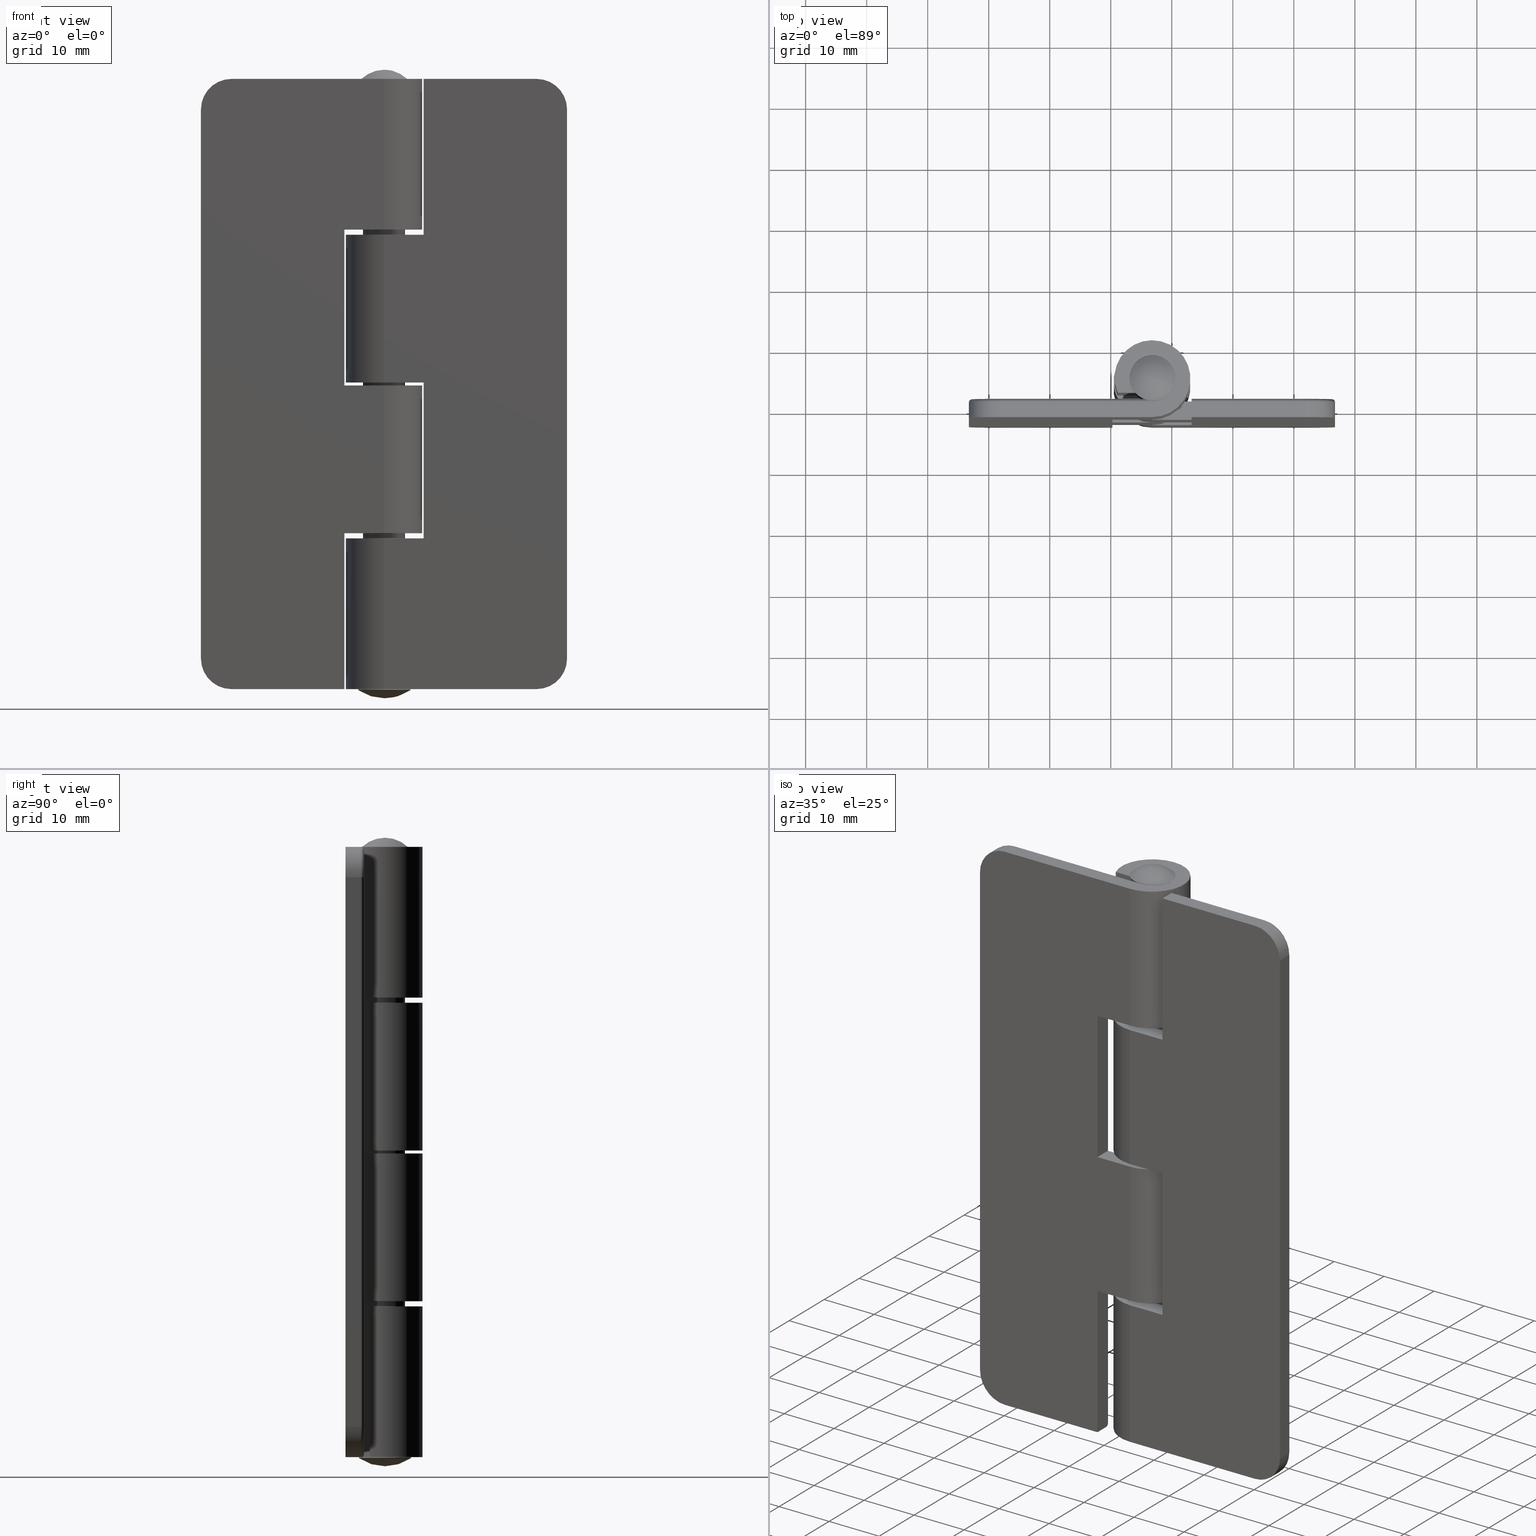
[diagram: canonical four-view strip — front | top / right | iso, engineering-drawing reading convention]
A machine part, canonical four-view strip (front | top / right | iso — engineering-drawing reading convention). The complete STEP part file that produces these views, byte-faithful:
ISO-10303-21;
HEADER;
/* Generated by software containing ST-Developer
 * from STEP Tools, Inc. (www.steptools.com) 
 */

FILE_DESCRIPTION(
/* description */ (''),
/* implementation_level */ '2;1');

FILE_NAME(
/* name */ '\\\\SYNOLOGYNAS\\web\\db2\\HHN10060-30\\\X2\B3C4BA74\X0\\\
HHN10060-30.stp',
/* time_stamp */ '2026-02-11T14:35:28+09:00',
/* author */ ('user'),
/* organization */ (''),
/* preprocessor_version */ 'ST-DEVELOPER v15.6',
/* originating_system */ 'Autodesk Inventor 2015',
/* authorisation */ '');

FILE_SCHEMA (('AUTOMOTIVE_DESIGN { 1 0 10303 214 3 1 1 }'));
ENDSEC;

DATA;
#10=MECHANICAL_DESIGN_GEOMETRIC_PRESENTATION_REPRESENTATION('',(#33,#34),
#965);
#11=ITEM_DEFINED_TRANSFORMATION($,$,#546,#611);
#12=ITEM_DEFINED_TRANSFORMATION($,$,#598,#612);
#13=ITEM_DEFINED_TRANSFORMATION($,$,#546,#613);
#14=(
REPRESENTATION_RELATIONSHIP($,$,#981,#983)
REPRESENTATION_RELATIONSHIP_WITH_TRANSFORMATION(#11)
SHAPE_REPRESENTATION_RELATIONSHIP()
);
#15=(
REPRESENTATION_RELATIONSHIP($,$,#982,#983)
REPRESENTATION_RELATIONSHIP_WITH_TRANSFORMATION(#12)
SHAPE_REPRESENTATION_RELATIONSHIP()
);
#16=(
REPRESENTATION_RELATIONSHIP($,$,#981,#983)
REPRESENTATION_RELATIONSHIP_WITH_TRANSFORMATION(#13)
SHAPE_REPRESENTATION_RELATIONSHIP()
);
#17=CONTEXT_DEPENDENT_SHAPE_REPRESENTATION(#14,#978);
#18=CONTEXT_DEPENDENT_SHAPE_REPRESENTATION(#15,#979);
#19=CONTEXT_DEPENDENT_SHAPE_REPRESENTATION(#16,#980);
#20=NEXT_ASSEMBLY_USAGE_OCCURRENCE('HHN10060-30_\X2\B0A0AC1C\X0\:1',$,$,
#987,#985,$);
#21=NEXT_ASSEMBLY_USAGE_OCCURRENCE('HHN10060-30_\X2\D540\X0\:1',$,$,#987,
#986,$);
#22=NEXT_ASSEMBLY_USAGE_OCCURRENCE('HHN10060-30_\X2\B0A0AC1C\X0\:2',$,$,
#987,#985,$);
#23=SPHERICAL_SURFACE('',#604,7.49999999999996);
#24=SPHERICAL_SURFACE('',#608,5.43750000000002);
#25=FACE_BOUND('',#204,.T.);
#26=FACE_BOUND('',#206,.T.);
#27=FACE_BOUND('',#209,.T.);
#28=FACE_BOUND('',#212,.T.);
#29=SHAPE_REPRESENTATION_RELATIONSHIP('SRR','None',#981,#31);
#30=SHAPE_REPRESENTATION_RELATIONSHIP('SRR','None',#982,#32);
#31=ADVANCED_BREP_SHAPE_REPRESENTATION($,(#35),#962);
#32=ADVANCED_BREP_SHAPE_REPRESENTATION($,(#36),#963);
#33=STYLED_ITEM('',(#1000),#35);
#34=STYLED_ITEM('',(#1001),#36);
#35=MANIFOLD_SOLID_BREP('\X2\C194B9ACB4DC\X0\1',#544);
#36=MANIFOLD_SOLID_BREP('\X2\C194B9ACB4DC\X0\1',#545);
#37=PLANE('',#565);
#38=PLANE('',#570);
#39=PLANE('',#573);
#40=PLANE('',#574);
#41=PLANE('',#575);
#42=PLANE('',#579);
#43=PLANE('',#583);
#44=PLANE('',#584);
#45=PLANE('',#588);
#46=PLANE('',#590);
#47=PLANE('',#594);
#48=PLANE('',#596);
#49=PLANE('',#602);
#50=PLANE('',#605);
#51=LINE('',#814,#92);
#52=LINE('',#815,#93);
#53=LINE('',#826,#94);
#54=LINE('',#827,#95);
#55=LINE('',#838,#96);
#56=LINE('',#839,#97);
#57=LINE('',#842,#98);
#58=LINE('',#844,#99);
#59=LINE('',#849,#100);
#60=LINE('',#852,#101);
#61=LINE('',#856,#102);
#62=LINE('',#857,#103);
#63=LINE('',#860,#104);
#64=LINE('',#864,#105);
#65=LINE('',#865,#106);
#66=LINE('',#868,#107);
#67=LINE('',#870,#108);
#68=LINE('',#871,#109);
#69=LINE('',#874,#110);
#70=LINE('',#878,#111);
#71=LINE('',#883,#112);
#72=LINE('',#887,#113);
#73=LINE('',#889,#114);
#74=LINE('',#891,#115);
#75=LINE('',#897,#116);
#76=LINE('',#901,#117);
#77=LINE('',#903,#118);
#78=LINE('',#904,#119);
#79=LINE('',#907,#120);
#80=LINE('',#911,#121);
#81=LINE('',#916,#122);
#82=LINE('',#918,#123);
#83=LINE('',#919,#124);
#84=LINE('',#921,#125);
#85=LINE('',#922,#126);
#86=LINE('',#924,#127);
#87=LINE('',#926,#128);
#88=LINE('',#928,#129);
#89=LINE('',#931,#130);
#90=LINE('',#933,#131);
#91=LINE('',#935,#132);
#92=VECTOR('',#628,25.);
#93=VECTOR('',#629,25.);
#94=VECTOR('',#642,90.);
#95=VECTOR('',#643,90.);
#96=VECTOR('',#656,18.5);
#97=VECTOR('',#657,18.5);
#98=VECTOR('',#660,2.5);
#99=VECTOR('',#661,25.);
#100=VECTOR('',#666,2.54253523350225);
#101=VECTOR('',#669,2.5);
#102=VECTOR('',#674,2.5);
#103=VECTOR('',#675,90.);
#104=VECTOR('',#678,2.5);
#105=VECTOR('',#683,2.5);
#106=VECTOR('',#684,18.5);
#107=VECTOR('',#687,25.05);
#108=VECTOR('',#688,3.);
#109=VECTOR('',#689,25.55);
#110=VECTOR('',#692,6.50000000000001);
#111=VECTOR('',#695,3.21193035016996);
#112=VECTOR('',#700,6.50000000000001);
#113=VECTOR('',#703,6.5);
#114=VECTOR('',#704,3.);
#115=VECTOR('',#705,6.5);
#116=VECTOR('',#710,3.21193035016996);
#117=VECTOR('',#715,25.55);
#118=VECTOR('',#716,3.);
#119=VECTOR('',#717,25.55);
#120=VECTOR('',#720,6.49999999999999);
#121=VECTOR('',#723,3.21193035016996);
#122=VECTOR('',#728,6.49999999999999);
#123=VECTOR('',#731,24.2);
#124=VECTOR('',#732,24.7);
#125=VECTOR('',#735,24.2);
#126=VECTOR('',#736,24.2);
#127=VECTOR('',#739,24.7);
#128=VECTOR('',#742,24.7);
#129=VECTOR('',#745,24.2);
#130=VECTOR('',#750,24.2);
#131=VECTOR('',#753,24.2);
#132=VECTOR('',#756,24.2);
#133=CYLINDRICAL_SURFACE('',#551,0.5);
#134=CYLINDRICAL_SURFACE('',#557,0.5);
#135=CYLINDRICAL_SURFACE('',#563,0.5);
#136=CYLINDRICAL_SURFACE('',#568,5.);
#137=CYLINDRICAL_SURFACE('',#571,5.);
#138=CYLINDRICAL_SURFACE('',#589,3.45);
#139=CYLINDRICAL_SURFACE('',#591,6.3);
#140=CYLINDRICAL_SURFACE('',#592,6.3);
#141=CYLINDRICAL_SURFACE('',#593,6.15);
#142=CYLINDRICAL_SURFACE('',#595,6.15);
#143=CYLINDRICAL_SURFACE('',#597,3.45);
#144=CYLINDRICAL_SURFACE('',#609,3.45);
#145=FACE_OUTER_BOUND('',#177,.T.);
#146=FACE_OUTER_BOUND('',#178,.T.);
#147=FACE_OUTER_BOUND('',#179,.T.);
#148=FACE_OUTER_BOUND('',#180,.T.);
#149=FACE_OUTER_BOUND('',#181,.T.);
#150=FACE_OUTER_BOUND('',#182,.T.);
#151=FACE_OUTER_BOUND('',#183,.T.);
#152=FACE_OUTER_BOUND('',#184,.T.);
#153=FACE_OUTER_BOUND('',#185,.T.);
#154=FACE_OUTER_BOUND('',#186,.T.);
#155=FACE_OUTER_BOUND('',#187,.T.);
#156=FACE_OUTER_BOUND('',#188,.T.);
#157=FACE_OUTER_BOUND('',#189,.T.);
#158=FACE_OUTER_BOUND('',#190,.T.);
#159=FACE_OUTER_BOUND('',#191,.T.);
#160=FACE_OUTER_BOUND('',#192,.T.);
#161=FACE_OUTER_BOUND('',#193,.T.);
#162=FACE_OUTER_BOUND('',#194,.T.);
#163=FACE_OUTER_BOUND('',#195,.T.);
#164=FACE_OUTER_BOUND('',#196,.T.);
#165=FACE_OUTER_BOUND('',#197,.T.);
#166=FACE_OUTER_BOUND('',#198,.T.);
#167=FACE_OUTER_BOUND('',#199,.T.);
#168=FACE_OUTER_BOUND('',#200,.T.);
#169=FACE_OUTER_BOUND('',#201,.T.);
#170=FACE_OUTER_BOUND('',#202,.T.);
#171=FACE_OUTER_BOUND('',#203,.T.);
#172=FACE_OUTER_BOUND('',#205,.T.);
#173=FACE_OUTER_BOUND('',#207,.T.);
#174=FACE_OUTER_BOUND('',#208,.T.);
#175=FACE_OUTER_BOUND('',#210,.T.);
#176=FACE_OUTER_BOUND('',#211,.T.);
#177=EDGE_LOOP('',(#364,#365,#366,#367));
#178=EDGE_LOOP('',(#368,#369,#370,#371));
#179=EDGE_LOOP('',(#372,#373,#374,#375));
#180=EDGE_LOOP('',(#376,#377,#378,#379));
#181=EDGE_LOOP('',(#380,#381,#382,#383));
#182=EDGE_LOOP('',(#384,#385,#386,#387));
#183=EDGE_LOOP('',(#388,#389,#390,#391,#392,#393,#394));
#184=EDGE_LOOP('',(#395,#396,#397,#398));
#185=EDGE_LOOP('',(#399,#400,#401,#402));
#186=EDGE_LOOP('',(#403,#404,#405,#406));
#187=EDGE_LOOP('',(#407,#408,#409,#410));
#188=EDGE_LOOP('',(#411,#412,#413,#414,#415));
#189=EDGE_LOOP('',(#416,#417,#418,#419,#420,#421,#422));
#190=EDGE_LOOP('',(#423,#424,#425,#426,#427,#428,#429));
#191=EDGE_LOOP('',(#430,#431,#432,#433));
#192=EDGE_LOOP('',(#434,#435,#436,#437,#438,#439,#440));
#193=EDGE_LOOP('',(#441,#442,#443,#444,#445,#446,#447,#448,#449,#450,#451,
#452));
#194=EDGE_LOOP('',(#453,#454,#455,#456));
#195=EDGE_LOOP('',(#457,#458,#459,#460,#461));
#196=EDGE_LOOP('',(#462,#463,#464,#465));
#197=EDGE_LOOP('',(#466,#467,#468,#469));
#198=EDGE_LOOP('',(#470,#471,#472,#473));
#199=EDGE_LOOP('',(#474,#475,#476,#477,#478,#479,#480,#481,#482,#483,#484,
#485));
#200=EDGE_LOOP('',(#486,#487,#488,#489));
#201=EDGE_LOOP('',(#490,#491,#492,#493));
#202=EDGE_LOOP('',(#494,#495,#496,#497));
#203=EDGE_LOOP('',(#498));
#204=EDGE_LOOP('',(#499));
#205=EDGE_LOOP('',(#500));
#206=EDGE_LOOP('',(#501));
#207=EDGE_LOOP('',(#502));
#208=EDGE_LOOP('',(#503));
#209=EDGE_LOOP('',(#504));
#210=EDGE_LOOP('',(#505));
#211=EDGE_LOOP('',(#506));
#212=EDGE_LOOP('',(#507));
#213=CIRCLE('',#548,3.45);
#214=CIRCLE('',#549,0.499999999999998);
#215=CIRCLE('',#550,3.95);
#216=CIRCLE('',#552,0.5);
#217=CIRCLE('',#554,0.5);
#218=CIRCLE('',#555,5.);
#219=CIRCLE('',#556,4.5);
#220=CIRCLE('',#558,0.5);
#221=CIRCLE('',#560,0.5);
#222=CIRCLE('',#561,5.);
#223=CIRCLE('',#562,4.5);
#224=CIRCLE('',#564,0.5);
#225=CIRCLE('',#566,6.3);
#226=CIRCLE('',#567,6.15);
#227=CIRCLE('',#569,5.);
#228=CIRCLE('',#572,5.);
#229=CIRCLE('',#576,3.45);
#230=CIRCLE('',#577,6.15);
#231=CIRCLE('',#578,6.3);
#232=CIRCLE('',#580,6.3);
#233=CIRCLE('',#581,6.15);
#234=CIRCLE('',#582,3.45);
#235=CIRCLE('',#585,3.45);
#236=CIRCLE('',#586,6.15);
#237=CIRCLE('',#587,6.3);
#238=CIRCLE('',#600,4.2458837970919);
#239=CIRCLE('',#601,4.18927201313067);
#240=CIRCLE('',#603,3.45);
#241=CIRCLE('',#606,3.75000000000002);
#242=CIRCLE('',#607,3.45);
#243=B_SPLINE_CURVE_WITH_KNOTS('',3,(#795,#796,#797,#798,#799,#800,#801,
#802,#803,#804),.UNSPECIFIED.,.F.,.F.,(4,2,2,2,4),(0.422615928225364,0.448563293287226,
0.472499758757524,0.492621869837143,0.509313922478333),.UNSPECIFIED.);
#244=VERTEX_POINT('',#793);
#245=VERTEX_POINT('',#794);
#246=VERTEX_POINT('',#805);
#247=VERTEX_POINT('',#807);
#248=VERTEX_POINT('',#811);
#249=VERTEX_POINT('',#812);
#250=VERTEX_POINT('',#817);
#251=VERTEX_POINT('',#818);
#252=VERTEX_POINT('',#823);
#253=VERTEX_POINT('',#824);
#254=VERTEX_POINT('',#829);
#255=VERTEX_POINT('',#830);
#256=VERTEX_POINT('',#835);
#257=VERTEX_POINT('',#836);
#258=VERTEX_POINT('',#841);
#259=VERTEX_POINT('',#843);
#260=VERTEX_POINT('',#845);
#261=VERTEX_POINT('',#847);
#262=VERTEX_POINT('',#851);
#263=VERTEX_POINT('',#855);
#264=VERTEX_POINT('',#859);
#265=VERTEX_POINT('',#863);
#266=VERTEX_POINT('',#867);
#267=VERTEX_POINT('',#869);
#268=VERTEX_POINT('',#873);
#269=VERTEX_POINT('',#875);
#270=VERTEX_POINT('',#877);
#271=VERTEX_POINT('',#879);
#272=VERTEX_POINT('',#881);
#273=VERTEX_POINT('',#885);
#274=VERTEX_POINT('',#886);
#275=VERTEX_POINT('',#888);
#276=VERTEX_POINT('',#890);
#277=VERTEX_POINT('',#892);
#278=VERTEX_POINT('',#894);
#279=VERTEX_POINT('',#896);
#280=VERTEX_POINT('',#900);
#281=VERTEX_POINT('',#902);
#282=VERTEX_POINT('',#906);
#283=VERTEX_POINT('',#908);
#284=VERTEX_POINT('',#910);
#285=VERTEX_POINT('',#912);
#286=VERTEX_POINT('',#914);
#287=VERTEX_POINT('',#939);
#288=VERTEX_POINT('',#941);
#289=VERTEX_POINT('',#944);
#290=VERTEX_POINT('',#948);
#291=VERTEX_POINT('',#950);
#292=EDGE_CURVE('',#244,#245,#243,.T.);
#293=EDGE_CURVE('',#245,#246,#213,.T.);
#294=EDGE_CURVE('',#246,#247,#214,.T.);
#295=EDGE_CURVE('',#247,#244,#215,.T.);
#296=EDGE_CURVE('',#248,#249,#216,.T.);
#297=EDGE_CURVE('',#249,#247,#51,.T.);
#298=EDGE_CURVE('',#246,#248,#52,.T.);
#299=EDGE_CURVE('',#250,#251,#217,.T.);
#300=EDGE_CURVE('',#251,#249,#218,.T.);
#301=EDGE_CURVE('',#248,#250,#219,.T.);
#302=EDGE_CURVE('',#252,#253,#220,.T.);
#303=EDGE_CURVE('',#253,#251,#53,.T.);
#304=EDGE_CURVE('',#250,#252,#54,.T.);
#305=EDGE_CURVE('',#254,#255,#221,.T.);
#306=EDGE_CURVE('',#255,#253,#222,.T.);
#307=EDGE_CURVE('',#252,#254,#223,.T.);
#308=EDGE_CURVE('',#256,#257,#224,.T.);
#309=EDGE_CURVE('',#257,#255,#55,.T.);
#310=EDGE_CURVE('',#254,#256,#56,.T.);
#311=EDGE_CURVE('',#258,#249,#57,.T.);
#312=EDGE_CURVE('',#258,#259,#58,.T.);
#313=EDGE_CURVE('',#259,#260,#225,.T.);
#314=EDGE_CURVE('',#260,#261,#226,.T.);
#315=EDGE_CURVE('',#261,#244,#59,.T.);
#316=EDGE_CURVE('',#251,#262,#60,.T.);
#317=EDGE_CURVE('',#262,#258,#227,.T.);
#318=EDGE_CURVE('',#263,#253,#61,.T.);
#319=EDGE_CURVE('',#262,#263,#62,.T.);
#320=EDGE_CURVE('',#255,#264,#63,.T.);
#321=EDGE_CURVE('',#264,#263,#228,.T.);
#322=EDGE_CURVE('',#257,#265,#64,.T.);
#323=EDGE_CURVE('',#265,#264,#65,.T.);
#324=EDGE_CURVE('',#266,#256,#66,.T.);
#325=EDGE_CURVE('',#266,#267,#67,.T.);
#326=EDGE_CURVE('',#265,#267,#68,.T.);
#327=EDGE_CURVE('',#268,#266,#69,.T.);
#328=EDGE_CURVE('',#269,#268,#229,.T.);
#329=EDGE_CURVE('',#270,#269,#70,.T.);
#330=EDGE_CURVE('',#271,#270,#230,.T.);
#331=EDGE_CURVE('',#272,#271,#231,.T.);
#332=EDGE_CURVE('',#267,#272,#71,.T.);
#333=EDGE_CURVE('',#273,#274,#72,.T.);
#334=EDGE_CURVE('',#275,#273,#73,.T.);
#335=EDGE_CURVE('',#276,#275,#74,.T.);
#336=EDGE_CURVE('',#277,#276,#232,.T.);
#337=EDGE_CURVE('',#278,#277,#233,.T.);
#338=EDGE_CURVE('',#279,#278,#75,.T.);
#339=EDGE_CURVE('',#274,#279,#234,.T.);
#340=EDGE_CURVE('',#280,#273,#76,.T.);
#341=EDGE_CURVE('',#280,#281,#77,.T.);
#342=EDGE_CURVE('',#275,#281,#78,.T.);
#343=EDGE_CURVE('',#282,#280,#79,.T.);
#344=EDGE_CURVE('',#283,#282,#235,.T.);
#345=EDGE_CURVE('',#284,#283,#80,.T.);
#346=EDGE_CURVE('',#285,#284,#236,.T.);
#347=EDGE_CURVE('',#286,#285,#237,.T.);
#348=EDGE_CURVE('',#281,#286,#81,.T.);
#349=EDGE_CURVE('',#276,#272,#82,.T.);
#350=EDGE_CURVE('',#259,#286,#83,.T.);
#351=EDGE_CURVE('',#245,#283,#84,.T.);
#352=EDGE_CURVE('',#246,#282,#85,.T.);
#353=EDGE_CURVE('',#261,#284,#86,.T.);
#354=EDGE_CURVE('',#260,#285,#87,.T.);
#355=EDGE_CURVE('',#277,#271,#88,.T.);
#356=EDGE_CURVE('',#274,#268,#89,.T.);
#357=EDGE_CURVE('',#278,#270,#90,.T.);
#358=EDGE_CURVE('',#279,#269,#91,.T.);
#359=EDGE_CURVE('',#287,#287,#238,.T.);
#360=EDGE_CURVE('',#288,#288,#239,.T.);
#361=EDGE_CURVE('',#289,#289,#240,.T.);
#362=EDGE_CURVE('',#290,#290,#241,.T.);
#363=EDGE_CURVE('',#291,#291,#242,.T.);
#364=ORIENTED_EDGE('',*,*,#292,.T.);
#365=ORIENTED_EDGE('',*,*,#293,.T.);
#366=ORIENTED_EDGE('',*,*,#294,.T.);
#367=ORIENTED_EDGE('',*,*,#295,.T.);
#368=ORIENTED_EDGE('',*,*,#296,.T.);
#369=ORIENTED_EDGE('',*,*,#297,.T.);
#370=ORIENTED_EDGE('',*,*,#294,.F.);
#371=ORIENTED_EDGE('',*,*,#298,.T.);
#372=ORIENTED_EDGE('',*,*,#299,.T.);
#373=ORIENTED_EDGE('',*,*,#300,.T.);
#374=ORIENTED_EDGE('',*,*,#296,.F.);
#375=ORIENTED_EDGE('',*,*,#301,.T.);
#376=ORIENTED_EDGE('',*,*,#302,.T.);
#377=ORIENTED_EDGE('',*,*,#303,.T.);
#378=ORIENTED_EDGE('',*,*,#299,.F.);
#379=ORIENTED_EDGE('',*,*,#304,.T.);
#380=ORIENTED_EDGE('',*,*,#305,.T.);
#381=ORIENTED_EDGE('',*,*,#306,.T.);
#382=ORIENTED_EDGE('',*,*,#302,.F.);
#383=ORIENTED_EDGE('',*,*,#307,.T.);
#384=ORIENTED_EDGE('',*,*,#308,.T.);
#385=ORIENTED_EDGE('',*,*,#309,.T.);
#386=ORIENTED_EDGE('',*,*,#305,.F.);
#387=ORIENTED_EDGE('',*,*,#310,.T.);
#388=ORIENTED_EDGE('',*,*,#295,.F.);
#389=ORIENTED_EDGE('',*,*,#297,.F.);
#390=ORIENTED_EDGE('',*,*,#311,.F.);
#391=ORIENTED_EDGE('',*,*,#312,.T.);
#392=ORIENTED_EDGE('',*,*,#313,.T.);
#393=ORIENTED_EDGE('',*,*,#314,.T.);
#394=ORIENTED_EDGE('',*,*,#315,.T.);
#395=ORIENTED_EDGE('',*,*,#300,.F.);
#396=ORIENTED_EDGE('',*,*,#316,.T.);
#397=ORIENTED_EDGE('',*,*,#317,.T.);
#398=ORIENTED_EDGE('',*,*,#311,.T.);
#399=ORIENTED_EDGE('',*,*,#303,.F.);
#400=ORIENTED_EDGE('',*,*,#318,.F.);
#401=ORIENTED_EDGE('',*,*,#319,.F.);
#402=ORIENTED_EDGE('',*,*,#316,.F.);
#403=ORIENTED_EDGE('',*,*,#306,.F.);
#404=ORIENTED_EDGE('',*,*,#320,.T.);
#405=ORIENTED_EDGE('',*,*,#321,.T.);
#406=ORIENTED_EDGE('',*,*,#318,.T.);
#407=ORIENTED_EDGE('',*,*,#309,.F.);
#408=ORIENTED_EDGE('',*,*,#322,.T.);
#409=ORIENTED_EDGE('',*,*,#323,.T.);
#410=ORIENTED_EDGE('',*,*,#320,.F.);
#411=ORIENTED_EDGE('',*,*,#308,.F.);
#412=ORIENTED_EDGE('',*,*,#324,.F.);
#413=ORIENTED_EDGE('',*,*,#325,.T.);
#414=ORIENTED_EDGE('',*,*,#326,.F.);
#415=ORIENTED_EDGE('',*,*,#322,.F.);
#416=ORIENTED_EDGE('',*,*,#327,.F.);
#417=ORIENTED_EDGE('',*,*,#328,.F.);
#418=ORIENTED_EDGE('',*,*,#329,.F.);
#419=ORIENTED_EDGE('',*,*,#330,.F.);
#420=ORIENTED_EDGE('',*,*,#331,.F.);
#421=ORIENTED_EDGE('',*,*,#332,.F.);
#422=ORIENTED_EDGE('',*,*,#325,.F.);
#423=ORIENTED_EDGE('',*,*,#333,.F.);
#424=ORIENTED_EDGE('',*,*,#334,.F.);
#425=ORIENTED_EDGE('',*,*,#335,.F.);
#426=ORIENTED_EDGE('',*,*,#336,.F.);
#427=ORIENTED_EDGE('',*,*,#337,.F.);
#428=ORIENTED_EDGE('',*,*,#338,.F.);
#429=ORIENTED_EDGE('',*,*,#339,.F.);
#430=ORIENTED_EDGE('',*,*,#340,.F.);
#431=ORIENTED_EDGE('',*,*,#341,.T.);
#432=ORIENTED_EDGE('',*,*,#342,.F.);
#433=ORIENTED_EDGE('',*,*,#334,.T.);
#434=ORIENTED_EDGE('',*,*,#343,.F.);
#435=ORIENTED_EDGE('',*,*,#344,.F.);
#436=ORIENTED_EDGE('',*,*,#345,.F.);
#437=ORIENTED_EDGE('',*,*,#346,.F.);
#438=ORIENTED_EDGE('',*,*,#347,.F.);
#439=ORIENTED_EDGE('',*,*,#348,.F.);
#440=ORIENTED_EDGE('',*,*,#341,.F.);
#441=ORIENTED_EDGE('',*,*,#326,.T.);
#442=ORIENTED_EDGE('',*,*,#332,.T.);
#443=ORIENTED_EDGE('',*,*,#349,.F.);
#444=ORIENTED_EDGE('',*,*,#335,.T.);
#445=ORIENTED_EDGE('',*,*,#342,.T.);
#446=ORIENTED_EDGE('',*,*,#348,.T.);
#447=ORIENTED_EDGE('',*,*,#350,.F.);
#448=ORIENTED_EDGE('',*,*,#312,.F.);
#449=ORIENTED_EDGE('',*,*,#317,.F.);
#450=ORIENTED_EDGE('',*,*,#319,.T.);
#451=ORIENTED_EDGE('',*,*,#321,.F.);
#452=ORIENTED_EDGE('',*,*,#323,.F.);
#453=ORIENTED_EDGE('',*,*,#293,.F.);
#454=ORIENTED_EDGE('',*,*,#351,.T.);
#455=ORIENTED_EDGE('',*,*,#344,.T.);
#456=ORIENTED_EDGE('',*,*,#352,.F.);
#457=ORIENTED_EDGE('',*,*,#292,.F.);
#458=ORIENTED_EDGE('',*,*,#315,.F.);
#459=ORIENTED_EDGE('',*,*,#353,.T.);
#460=ORIENTED_EDGE('',*,*,#345,.T.);
#461=ORIENTED_EDGE('',*,*,#351,.F.);
#462=ORIENTED_EDGE('',*,*,#347,.T.);
#463=ORIENTED_EDGE('',*,*,#354,.F.);
#464=ORIENTED_EDGE('',*,*,#313,.F.);
#465=ORIENTED_EDGE('',*,*,#350,.T.);
#466=ORIENTED_EDGE('',*,*,#331,.T.);
#467=ORIENTED_EDGE('',*,*,#355,.F.);
#468=ORIENTED_EDGE('',*,*,#336,.T.);
#469=ORIENTED_EDGE('',*,*,#349,.T.);
#470=ORIENTED_EDGE('',*,*,#346,.T.);
#471=ORIENTED_EDGE('',*,*,#353,.F.);
#472=ORIENTED_EDGE('',*,*,#314,.F.);
#473=ORIENTED_EDGE('',*,*,#354,.T.);
#474=ORIENTED_EDGE('',*,*,#298,.F.);
#475=ORIENTED_EDGE('',*,*,#352,.T.);
#476=ORIENTED_EDGE('',*,*,#343,.T.);
#477=ORIENTED_EDGE('',*,*,#340,.T.);
#478=ORIENTED_EDGE('',*,*,#333,.T.);
#479=ORIENTED_EDGE('',*,*,#356,.T.);
#480=ORIENTED_EDGE('',*,*,#327,.T.);
#481=ORIENTED_EDGE('',*,*,#324,.T.);
#482=ORIENTED_EDGE('',*,*,#310,.F.);
#483=ORIENTED_EDGE('',*,*,#307,.F.);
#484=ORIENTED_EDGE('',*,*,#304,.F.);
#485=ORIENTED_EDGE('',*,*,#301,.F.);
#486=ORIENTED_EDGE('',*,*,#330,.T.);
#487=ORIENTED_EDGE('',*,*,#357,.F.);
#488=ORIENTED_EDGE('',*,*,#337,.T.);
#489=ORIENTED_EDGE('',*,*,#355,.T.);
#490=ORIENTED_EDGE('',*,*,#329,.T.);
#491=ORIENTED_EDGE('',*,*,#358,.F.);
#492=ORIENTED_EDGE('',*,*,#338,.T.);
#493=ORIENTED_EDGE('',*,*,#357,.T.);
#494=ORIENTED_EDGE('',*,*,#328,.T.);
#495=ORIENTED_EDGE('',*,*,#356,.F.);
#496=ORIENTED_EDGE('',*,*,#339,.T.);
#497=ORIENTED_EDGE('',*,*,#358,.T.);
#498=ORIENTED_EDGE('',*,*,#359,.T.);
#499=ORIENTED_EDGE('',*,*,#360,.T.);
#500=ORIENTED_EDGE('',*,*,#360,.F.);
#501=ORIENTED_EDGE('',*,*,#361,.T.);
#502=ORIENTED_EDGE('',*,*,#359,.F.);
#503=ORIENTED_EDGE('',*,*,#362,.F.);
#504=ORIENTED_EDGE('',*,*,#363,.F.);
#505=ORIENTED_EDGE('',*,*,#362,.T.);
#506=ORIENTED_EDGE('',*,*,#361,.F.);
#507=ORIENTED_EDGE('',*,*,#363,.T.);
#508=TOROIDAL_SURFACE('',#547,3.95,0.5);
#509=TOROIDAL_SURFACE('',#553,4.5,0.5);
#510=TOROIDAL_SURFACE('',#559,4.5,0.5);
#511=TOROIDAL_SURFACE('',#599,4.18927201313067,0.1);
#512=ADVANCED_FACE('',(#145),#508,.T.);
#513=ADVANCED_FACE('',(#146),#133,.T.);
#514=ADVANCED_FACE('',(#147),#509,.T.);
#515=ADVANCED_FACE('',(#148),#134,.T.);
#516=ADVANCED_FACE('',(#149),#510,.T.);
#517=ADVANCED_FACE('',(#150),#135,.T.);
#518=ADVANCED_FACE('',(#151),#37,.T.);
#519=ADVANCED_FACE('',(#152),#136,.T.);
#520=ADVANCED_FACE('',(#153),#38,.T.);
#521=ADVANCED_FACE('',(#154),#137,.T.);
#522=ADVANCED_FACE('',(#155),#39,.F.);
#523=ADVANCED_FACE('',(#156),#40,.F.);
#524=ADVANCED_FACE('',(#157),#41,.F.);
#525=ADVANCED_FACE('',(#158),#42,.F.);
#526=ADVANCED_FACE('',(#159),#43,.F.);
#527=ADVANCED_FACE('',(#160),#44,.F.);
#528=ADVANCED_FACE('',(#161),#45,.T.);
#529=ADVANCED_FACE('',(#162),#138,.F.);
#530=ADVANCED_FACE('',(#163),#46,.T.);
#531=ADVANCED_FACE('',(#164),#139,.T.);
#532=ADVANCED_FACE('',(#165),#140,.T.);
#533=ADVANCED_FACE('',(#166),#141,.T.);
#534=ADVANCED_FACE('',(#167),#47,.T.);
#535=ADVANCED_FACE('',(#168),#142,.T.);
#536=ADVANCED_FACE('',(#169),#48,.T.);
#537=ADVANCED_FACE('',(#170),#143,.F.);
#538=ADVANCED_FACE('',(#171,#25),#511,.T.);
#539=ADVANCED_FACE('',(#172,#26),#49,.T.);
#540=ADVANCED_FACE('',(#173),#23,.T.);
#541=ADVANCED_FACE('',(#174,#27),#50,.T.);
#542=ADVANCED_FACE('',(#175),#24,.T.);
#543=ADVANCED_FACE('',(#176,#28),#144,.T.);
#544=CLOSED_SHELL('',(#512,#513,#514,#515,#516,#517,#518,#519,#520,#521,
#522,#523,#524,#525,#526,#527,#528,#529,#530,#531,#532,#533,#534,#535,#536,
#537));
#545=CLOSED_SHELL('',(#538,#539,#540,#541,#542,#543));
#546=AXIS2_PLACEMENT_3D('placement',#791,#614,#615);
#547=AXIS2_PLACEMENT_3D('',#792,#616,#617);
#548=AXIS2_PLACEMENT_3D('',#806,#618,#619);
#549=AXIS2_PLACEMENT_3D('',#808,#620,#621);
#550=AXIS2_PLACEMENT_3D('',#809,#622,#623);
#551=AXIS2_PLACEMENT_3D('',#810,#624,#625);
#552=AXIS2_PLACEMENT_3D('',#813,#626,#627);
#553=AXIS2_PLACEMENT_3D('',#816,#630,#631);
#554=AXIS2_PLACEMENT_3D('',#819,#632,#633);
#555=AXIS2_PLACEMENT_3D('',#820,#634,#635);
#556=AXIS2_PLACEMENT_3D('',#821,#636,#637);
#557=AXIS2_PLACEMENT_3D('',#822,#638,#639);
#558=AXIS2_PLACEMENT_3D('',#825,#640,#641);
#559=AXIS2_PLACEMENT_3D('',#828,#644,#645);
#560=AXIS2_PLACEMENT_3D('',#831,#646,#647);
#561=AXIS2_PLACEMENT_3D('',#832,#648,#649);
#562=AXIS2_PLACEMENT_3D('',#833,#650,#651);
#563=AXIS2_PLACEMENT_3D('',#834,#652,#653);
#564=AXIS2_PLACEMENT_3D('',#837,#654,#655);
#565=AXIS2_PLACEMENT_3D('',#840,#658,#659);
#566=AXIS2_PLACEMENT_3D('',#846,#662,#663);
#567=AXIS2_PLACEMENT_3D('',#848,#664,#665);
#568=AXIS2_PLACEMENT_3D('',#850,#667,#668);
#569=AXIS2_PLACEMENT_3D('',#853,#670,#671);
#570=AXIS2_PLACEMENT_3D('',#854,#672,#673);
#571=AXIS2_PLACEMENT_3D('',#858,#676,#677);
#572=AXIS2_PLACEMENT_3D('',#861,#679,#680);
#573=AXIS2_PLACEMENT_3D('',#862,#681,#682);
#574=AXIS2_PLACEMENT_3D('',#866,#685,#686);
#575=AXIS2_PLACEMENT_3D('',#872,#690,#691);
#576=AXIS2_PLACEMENT_3D('',#876,#693,#694);
#577=AXIS2_PLACEMENT_3D('',#880,#696,#697);
#578=AXIS2_PLACEMENT_3D('',#882,#698,#699);
#579=AXIS2_PLACEMENT_3D('',#884,#701,#702);
#580=AXIS2_PLACEMENT_3D('',#893,#706,#707);
#581=AXIS2_PLACEMENT_3D('',#895,#708,#709);
#582=AXIS2_PLACEMENT_3D('',#898,#711,#712);
#583=AXIS2_PLACEMENT_3D('',#899,#713,#714);
#584=AXIS2_PLACEMENT_3D('',#905,#718,#719);
#585=AXIS2_PLACEMENT_3D('',#909,#721,#722);
#586=AXIS2_PLACEMENT_3D('',#913,#724,#725);
#587=AXIS2_PLACEMENT_3D('',#915,#726,#727);
#588=AXIS2_PLACEMENT_3D('',#917,#729,#730);
#589=AXIS2_PLACEMENT_3D('',#920,#733,#734);
#590=AXIS2_PLACEMENT_3D('',#923,#737,#738);
#591=AXIS2_PLACEMENT_3D('',#925,#740,#741);
#592=AXIS2_PLACEMENT_3D('',#927,#743,#744);
#593=AXIS2_PLACEMENT_3D('',#929,#746,#747);
#594=AXIS2_PLACEMENT_3D('',#930,#748,#749);
#595=AXIS2_PLACEMENT_3D('',#932,#751,#752);
#596=AXIS2_PLACEMENT_3D('',#934,#754,#755);
#597=AXIS2_PLACEMENT_3D('',#936,#757,#758);
#598=AXIS2_PLACEMENT_3D('placement',#937,#759,#760);
#599=AXIS2_PLACEMENT_3D('',#938,#761,#762);
#600=AXIS2_PLACEMENT_3D('',#940,#763,#764);
#601=AXIS2_PLACEMENT_3D('',#942,#765,#766);
#602=AXIS2_PLACEMENT_3D('',#943,#767,#768);
#603=AXIS2_PLACEMENT_3D('',#945,#769,#770);
#604=AXIS2_PLACEMENT_3D('',#946,#771,#772);
#605=AXIS2_PLACEMENT_3D('',#947,#773,#774);
#606=AXIS2_PLACEMENT_3D('',#949,#775,#776);
#607=AXIS2_PLACEMENT_3D('',#951,#777,#778);
#608=AXIS2_PLACEMENT_3D('',#952,#779,#780);
#609=AXIS2_PLACEMENT_3D('',#953,#781,#782);
#610=AXIS2_PLACEMENT_3D('placement',#954,#783,#784);
#611=AXIS2_PLACEMENT_3D('',#955,#785,#786);
#612=AXIS2_PLACEMENT_3D('',#956,#787,#788);
#613=AXIS2_PLACEMENT_3D('',#957,#789,#790);
#614=DIRECTION('axis',(0.,0.,1.));
#615=DIRECTION('refdir',(1.,0.,0.));
#616=DIRECTION('center_axis',(0.,0.,-1.));
#617=DIRECTION('ref_axis',(-1.,0.,0.));
#618=DIRECTION('center_axis',(0.,0.,-1.));
#619=DIRECTION('ref_axis',(0.380693493813441,0.924701283533291,0.));
#620=DIRECTION('center_axis',(1.,-2.21182886051213E-15,0.));
#621=DIRECTION('ref_axis',(2.21182886051213E-15,1.,0.));
#622=DIRECTION('center_axis',(0.,0.,1.));
#623=DIRECTION('ref_axis',(0.380693493813441,0.924701283533291,0.));
#624=DIRECTION('center_axis',(-1.,0.,0.));
#625=DIRECTION('ref_axis',(0.,0.707106781186548,0.707106781186547));
#626=DIRECTION('center_axis',(1.,0.,0.));
#627=DIRECTION('ref_axis',(0.,1.,0.));
#628=DIRECTION('',(1.,0.,0.));
#629=DIRECTION('',(-1.,0.,0.));
#630=DIRECTION('center_axis',(0.,-1.,0.));
#631=DIRECTION('ref_axis',(0.,0.,-1.));
#632=DIRECTION('center_axis',(0.,0.,1.));
#633=DIRECTION('ref_axis',(0.,1.,0.));
#634=DIRECTION('center_axis',(0.,1.,0.));
#635=DIRECTION('ref_axis',(-0.707106781186548,0.,0.707106781186547));
#636=DIRECTION('center_axis',(0.,-1.,0.));
#637=DIRECTION('ref_axis',(-0.707106781186548,0.,0.707106781186547));
#638=DIRECTION('center_axis',(0.,0.,-1.));
#639=DIRECTION('ref_axis',(-0.707106781186546,0.707106781186549,0.));
#640=DIRECTION('center_axis',(0.,0.,1.));
#641=DIRECTION('ref_axis',(0.,1.,0.));
#642=DIRECTION('',(0.,0.,1.));
#643=DIRECTION('',(0.,0.,-1.));
#644=DIRECTION('center_axis',(0.,-1.,0.));
#645=DIRECTION('ref_axis',(0.,0.,-1.));
#646=DIRECTION('center_axis',(-1.,0.,0.));
#647=DIRECTION('ref_axis',(0.,1.,0.));
#648=DIRECTION('center_axis',(0.,1.,0.));
#649=DIRECTION('ref_axis',(-0.707106781186548,0.,-0.707106781186547));
#650=DIRECTION('center_axis',(0.,-1.,0.));
#651=DIRECTION('ref_axis',(-0.707106781186548,0.,-0.707106781186547));
#652=DIRECTION('center_axis',(1.,0.,0.));
#653=DIRECTION('ref_axis',(0.,0.707106781186543,-0.707106781186552));
#654=DIRECTION('center_axis',(-1.,0.,2.61228946970625E-16));
#655=DIRECTION('ref_axis',(0.,0.707106781186543,-0.707106781186552));
#656=DIRECTION('',(-1.,0.,0.));
#657=DIRECTION('',(1.,0.,0.));
#658=DIRECTION('center_axis',(0.,0.,1.));
#659=DIRECTION('ref_axis',(1.,0.,0.));
#660=DIRECTION('',(0.,1.,0.));
#661=DIRECTION('',(1.,1.22464679914735E-16,0.));
#662=DIRECTION('center_axis',(0.,0.,1.));
#663=DIRECTION('ref_axis',(-5.19866336927653E-15,-1.,0.));
#664=DIRECTION('center_axis',(0.,0.,1.));
#665=DIRECTION('ref_axis',(1.06312283515111E-14,1.,0.));
#666=DIRECTION('',(1.,6.91312017127899E-16,0.));
#667=DIRECTION('center_axis',(0.,-1.,0.));
#668=DIRECTION('ref_axis',(-0.707106781186547,0.,0.707106781186547));
#669=DIRECTION('',(0.,-1.,0.));
#670=DIRECTION('center_axis',(-1.22464679914735E-16,1.,0.));
#671=DIRECTION('ref_axis',(-0.707106781186547,0.,0.707106781186547));
#672=DIRECTION('center_axis',(-1.,0.,0.));
#673=DIRECTION('ref_axis',(0.,1.,0.));
#674=DIRECTION('',(0.,1.,0.));
#675=DIRECTION('',(0.,0.,-1.));
#676=DIRECTION('center_axis',(0.,1.,0.));
#677=DIRECTION('ref_axis',(-0.707106781186547,0.,-0.707106781186547));
#678=DIRECTION('',(0.,-1.,0.));
#679=DIRECTION('center_axis',(-1.22464679914735E-16,1.,0.));
#680=DIRECTION('ref_axis',(-0.707106781186547,0.,-0.707106781186547));
#681=DIRECTION('center_axis',(0.,0.,1.));
#682=DIRECTION('ref_axis',(1.,0.,0.));
#683=DIRECTION('',(0.,-1.,0.));
#684=DIRECTION('',(-1.,-1.22464679914735E-16,0.));
#685=DIRECTION('center_axis',(-1.,0.,2.61228946970625E-16));
#686=DIRECTION('ref_axis',(2.66453525910038E-16,0.,1.));
#687=DIRECTION('',(-2.61228946970625E-16,0.,-1.));
#688=DIRECTION('',(0.,-1.,0.));
#689=DIRECTION('',(2.61228946970625E-16,3.1991319375221E-32,1.));
#690=DIRECTION('center_axis',(0.,0.,1.));
#691=DIRECTION('ref_axis',(1.,0.,0.));
#692=DIRECTION('',(-1.,0.,0.));
#693=DIRECTION('center_axis',(0.,0.,-1.));
#694=DIRECTION('ref_axis',(2.69738328555529E-17,1.,0.));
#695=DIRECTION('',(1.,6.91312017127899E-16,0.));
#696=DIRECTION('center_axis',(0.,0.,1.));
#697=DIRECTION('ref_axis',(1.06312283515111E-14,1.,0.));
#698=DIRECTION('center_axis',(0.,0.,1.));
#699=DIRECTION('ref_axis',(-5.19866336927653E-15,-1.,0.));
#700=DIRECTION('',(1.,1.22464679914735E-16,0.));
#701=DIRECTION('center_axis',(0.,0.,-1.));
#702=DIRECTION('ref_axis',(-1.,0.,0.));
#703=DIRECTION('',(1.,0.,0.));
#704=DIRECTION('',(0.,1.,0.));
#705=DIRECTION('',(-1.,-1.22464679914735E-16,0.));
#706=DIRECTION('center_axis',(0.,0.,-1.));
#707=DIRECTION('ref_axis',(-5.19866336927653E-15,-1.,0.));
#708=DIRECTION('center_axis',(0.,0.,-1.));
#709=DIRECTION('ref_axis',(1.06312283515111E-14,1.,0.));
#710=DIRECTION('',(-1.,-6.91312017127899E-16,0.));
#711=DIRECTION('center_axis',(0.,0.,1.));
#712=DIRECTION('ref_axis',(2.69738328555529E-17,1.,0.));
#713=DIRECTION('center_axis',(-1.,0.,3.04170691678125E-16));
#714=DIRECTION('ref_axis',(2.66453525910038E-16,0.,1.));
#715=DIRECTION('',(-3.04170691678125E-16,0.,-1.));
#716=DIRECTION('',(0.,-1.,0.));
#717=DIRECTION('',(3.04170691678125E-16,3.72501663958052E-32,1.));
#718=DIRECTION('center_axis',(0.,0.,1.));
#719=DIRECTION('ref_axis',(1.,0.,0.));
#720=DIRECTION('',(-1.,0.,0.));
#721=DIRECTION('center_axis',(0.,0.,-1.));
#722=DIRECTION('ref_axis',(2.69738328555529E-17,1.,0.));
#723=DIRECTION('',(1.,6.91312017127899E-16,0.));
#724=DIRECTION('center_axis',(0.,0.,1.));
#725=DIRECTION('ref_axis',(1.06312283515111E-14,1.,0.));
#726=DIRECTION('center_axis',(0.,0.,1.));
#727=DIRECTION('ref_axis',(-5.19866336927653E-15,-1.,0.));
#728=DIRECTION('',(1.,1.22464679914735E-16,0.));
#729=DIRECTION('center_axis',(1.22464679914735E-16,-1.,0.));
#730=DIRECTION('ref_axis',(-1.,-1.22464679914735E-16,0.));
#731=DIRECTION('',(0.,0.,-1.));
#732=DIRECTION('',(0.,0.,-1.));
#733=DIRECTION('center_axis',(0.,0.,-1.));
#734=DIRECTION('ref_axis',(2.69738328555529E-17,1.,0.));
#735=DIRECTION('',(0.,0.,-1.));
#736=DIRECTION('',(0.,0.,-1.));
#737=DIRECTION('center_axis',(6.91312017127899E-16,-1.,0.));
#738=DIRECTION('ref_axis',(-1.,-7.105427357601E-16,0.));
#739=DIRECTION('',(0.,0.,-1.));
#740=DIRECTION('center_axis',(0.,0.,-1.));
#741=DIRECTION('ref_axis',(-5.19866336927653E-15,-1.,0.));
#742=DIRECTION('',(0.,0.,-1.));
#743=DIRECTION('center_axis',(0.,0.,-1.));
#744=DIRECTION('ref_axis',(-5.19866336927653E-15,-1.,0.));
#745=DIRECTION('',(0.,0.,-1.));
#746=DIRECTION('center_axis',(0.,0.,-1.));
#747=DIRECTION('ref_axis',(1.06312283515111E-14,1.,0.));
#748=DIRECTION('center_axis',(0.,1.,0.));
#749=DIRECTION('ref_axis',(1.,0.,0.));
#750=DIRECTION('',(0.,0.,-1.));
#751=DIRECTION('center_axis',(0.,0.,-1.));
#752=DIRECTION('ref_axis',(1.06312283515111E-14,1.,0.));
#753=DIRECTION('',(0.,0.,-1.));
#754=DIRECTION('center_axis',(6.91312017127899E-16,-1.,0.));
#755=DIRECTION('ref_axis',(-1.,-7.105427357601E-16,0.));
#756=DIRECTION('',(0.,0.,-1.));
#757=DIRECTION('center_axis',(0.,0.,-1.));
#758=DIRECTION('ref_axis',(2.69738328555529E-17,1.,0.));
#759=DIRECTION('axis',(0.,0.,1.));
#760=DIRECTION('refdir',(1.,0.,0.));
#761=DIRECTION('center_axis',(0.,0.,1.));
#762=DIRECTION('ref_axis',(1.,0.,0.));
#763=DIRECTION('center_axis',(0.,0.,1.));
#764=DIRECTION('ref_axis',(-1.,1.22464679914735E-16,0.));
#765=DIRECTION('center_axis',(0.,0.,-1.));
#766=DIRECTION('ref_axis',(-1.,1.22464679914735E-16,0.));
#767=DIRECTION('center_axis',(0.,0.,1.));
#768=DIRECTION('ref_axis',(1.,0.,0.));
#769=DIRECTION('center_axis',(0.,0.,-1.));
#770=DIRECTION('ref_axis',(-1.,0.,0.));
#771=DIRECTION('center_axis',(6.29126380620926E-17,0.,1.));
#772=DIRECTION('ref_axis',(1.,0.,0.));
#773=DIRECTION('center_axis',(0.,0.,-1.));
#774=DIRECTION('ref_axis',(-1.,0.,0.));
#775=DIRECTION('center_axis',(0.,0.,1.));
#776=DIRECTION('ref_axis',(1.,0.,0.));
#777=DIRECTION('center_axis',(0.,0.,-1.));
#778=DIRECTION('ref_axis',(-1.,0.,0.));
#779=DIRECTION('center_axis',(6.12536841172498E-17,0.,1.));
#780=DIRECTION('ref_axis',(1.,0.,0.));
#781=DIRECTION('center_axis',(0.,0.,-1.));
#782=DIRECTION('ref_axis',(-1.,0.,0.));
#783=DIRECTION('axis',(0.,0.,1.));
#784=DIRECTION('refdir',(1.,0.,0.));
#785=DIRECTION('',(0.,0.,1.));
#786=DIRECTION('',(1.,0.,0.));
#787=DIRECTION('',(1.24195338529927E-17,-1.54074395550979E-33,1.));
#788=DIRECTION('',(0.957907622052297,-0.28707662324563,-1.18967661401182E-17));
#789=DIRECTION('',(0.,0.,-1.));
#790=DIRECTION('',(-1.,0.,0.));
#791=CARTESIAN_POINT('',(0.,0.,0.));
#792=CARTESIAN_POINT('Origin',(1.46675721073271E-15,6.45,-0.5));
#793=CARTESIAN_POINT('',(-3.09838667696593,4.,0.));
#794=CARTESIAN_POINT('',(-2.42899156029822,4.,-0.5));
#795=CARTESIAN_POINT('Ctrl Pts',(-3.09838667696593,4.,0.));
#796=CARTESIAN_POINT('Ctrl Pts',(-3.01189546009306,4.,4.15423809853482E-18));
#797=CARTESIAN_POINT('Ctrl Pts',(-2.90954117772019,4.,-0.017200376111892));
#798=CARTESIAN_POINT('Ctrl Pts',(-2.75243520061805,4.,-0.0716665353151114));
#799=CARTESIAN_POINT('Ctrl Pts',(-2.66791647997057,4.,-0.116653821602293));
#800=CARTESIAN_POINT('Ctrl Pts',(-2.55416266959983,4.,-0.209543512691439));
#801=CARTESIAN_POINT('Ctrl Pts',(-2.50144696441834,4.,-0.270366568320265));
#802=CARTESIAN_POINT('Ctrl Pts',(-2.44581585475573,4.,-0.379746071674212));
#803=CARTESIAN_POINT('Ctrl Pts',(-2.42899156029823,4.,-0.444359824529368));
#804=CARTESIAN_POINT('Ctrl Pts',(-2.42899156029823,4.,-0.5));
#805=CARTESIAN_POINT('',(-4.30859436909641E-18,3.,-0.5));
#806=CARTESIAN_POINT('Origin',(1.46675721073271E-15,6.45,-0.5));
#807=CARTESIAN_POINT('',(-1.11022302462516E-15,2.5,0.));
#808=CARTESIAN_POINT('Origin',(-1.11022302462516E-15,2.5,-0.5));
#809=CARTESIAN_POINT('Origin',(1.46675721073271E-15,6.45,0.));
#810=CARTESIAN_POINT('Origin',(-14.8931358470727,2.5,-0.5));
#811=CARTESIAN_POINT('',(-25.,3.,-0.5));
#812=CARTESIAN_POINT('',(-25.,2.5,0.));
#813=CARTESIAN_POINT('Origin',(-25.,2.5,-0.5));
#814=CARTESIAN_POINT('',(-14.8931358470727,2.5,0.));
#815=CARTESIAN_POINT('',(-14.8931358470727,3.,-0.5));
#816=CARTESIAN_POINT('Origin',(-25.,2.5,-5.));
#817=CARTESIAN_POINT('',(-29.5,3.,-5.));
#818=CARTESIAN_POINT('',(-30.,2.5,-5.));
#819=CARTESIAN_POINT('Origin',(-29.5,2.5,-5.));
#820=CARTESIAN_POINT('Origin',(-25.,2.5,-5.));
#821=CARTESIAN_POINT('Origin',(-25.,3.,-5.));
#822=CARTESIAN_POINT('Origin',(-29.5,2.5,0.));
#823=CARTESIAN_POINT('',(-29.5,3.,-95.));
#824=CARTESIAN_POINT('',(-30.,2.5,-95.));
#825=CARTESIAN_POINT('Origin',(-29.5,2.5,-95.));
#826=CARTESIAN_POINT('',(-30.,2.5,0.));
#827=CARTESIAN_POINT('',(-29.5,3.,0.));
#828=CARTESIAN_POINT('Origin',(-25.,2.5,-95.));
#829=CARTESIAN_POINT('',(-25.,3.,-99.5));
#830=CARTESIAN_POINT('',(-25.,2.5,-100.));
#831=CARTESIAN_POINT('Origin',(-25.,2.5,-99.5));
#832=CARTESIAN_POINT('Origin',(-25.,2.5,-95.));
#833=CARTESIAN_POINT('Origin',(-25.,3.,-95.));
#834=CARTESIAN_POINT('Origin',(-14.8931358470727,2.5,-99.5));
#835=CARTESIAN_POINT('',(-6.50000000000002,3.,-99.5));
#836=CARTESIAN_POINT('',(-6.50000000000002,2.5,-100.));
#837=CARTESIAN_POINT('Origin',(-6.50000000000002,2.5,-99.5));
#838=CARTESIAN_POINT('',(-14.8931358470727,2.5,-100.));
#839=CARTESIAN_POINT('',(-14.8931358470727,3.,-99.5));
#840=CARTESIAN_POINT('Origin',(0.213728305854641,6.61561542057506,0.));
#841=CARTESIAN_POINT('',(-25.,-3.06161699786838E-15,0.));
#842=CARTESIAN_POINT('',(-25.,3.30780771028753,0.));
#843=CARTESIAN_POINT('',(0.,0.,0.));
#844=CARTESIAN_POINT('',(-30.,-3.67394039744206E-15,0.));
#845=CARTESIAN_POINT('',(6.68488115725261E-14,12.6,0.));
#846=CARTESIAN_POINT('Origin',(3.27515792264421E-14,6.3,0.));
#847=CARTESIAN_POINT('',(-5.64092191046818,4.,0.));
#848=CARTESIAN_POINT('Origin',(1.46675721073271E-15,6.45,0.));
#849=CARTESIAN_POINT('',(-5.64092191046818,4.,0.));
#850=CARTESIAN_POINT('Origin',(-25.,3.30780771028753,-5.));
#851=CARTESIAN_POINT('',(-30.,-3.67394039744206E-15,-5.));
#852=CARTESIAN_POINT('',(-30.,3.30780771028753,-5.));
#853=CARTESIAN_POINT('Origin',(-25.,0.,-5.));
#854=CARTESIAN_POINT('Origin',(-30.,-3.88578058618805E-15,0.));
#855=CARTESIAN_POINT('',(-30.,-3.67394039744206E-15,-95.));
#856=CARTESIAN_POINT('',(-30.,3.30780771028753,-95.));
#857=CARTESIAN_POINT('',(-30.,-3.67394039744206E-15,0.));
#858=CARTESIAN_POINT('Origin',(-25.,3.30780771028753,-95.));
#859=CARTESIAN_POINT('',(-25.,-3.06161699786838E-15,-100.));
#860=CARTESIAN_POINT('',(-25.,3.30780771028753,-100.));
#861=CARTESIAN_POINT('Origin',(-25.,0.,-95.));
#862=CARTESIAN_POINT('Origin',(0.213728305854641,6.61561542057506,-100.));
#863=CARTESIAN_POINT('',(-6.50000000000002,-7.96020419445783E-16,-100.));
#864=CARTESIAN_POINT('',(-6.50000000000002,4.80780771028753,-100.));
#865=CARTESIAN_POINT('',(-30.,-3.67394039744206E-15,-100.));
#866=CARTESIAN_POINT('Origin',(-6.50000000000002,3.,-108.45));
#867=CARTESIAN_POINT('',(-6.50000000000001,3.,-74.45));
#868=CARTESIAN_POINT('',(-6.50000000000001,3.,-54.225));
#869=CARTESIAN_POINT('',(-6.50000000000001,-5.55111512312578E-16,-74.45));
#870=CARTESIAN_POINT('',(-6.50000000000001,3.,-74.45));
#871=CARTESIAN_POINT('',(-6.50000000000001,-8.32667268468867E-16,-54.225));
#872=CARTESIAN_POINT('Origin',(-6.50000000000001,3.,-74.45));
#873=CARTESIAN_POINT('',(-4.30859436909641E-18,3.,-74.45));
#874=CARTESIAN_POINT('',(-18.25,3.,-74.45));
#875=CARTESIAN_POINT('',(-2.42899156029822,4.,-74.45));
#876=CARTESIAN_POINT('Origin',(1.46675721073271E-15,6.45,-74.45));
#877=CARTESIAN_POINT('',(-5.64092191046818,4.,-74.45));
#878=CARTESIAN_POINT('',(-4.46449578014912,4.,-74.45));
#879=CARTESIAN_POINT('',(6.68488115725261E-14,12.6,-74.45));
#880=CARTESIAN_POINT('Origin',(1.46675721073271E-15,6.45,-74.45));
#881=CARTESIAN_POINT('',(0.,0.,-74.45));
#882=CARTESIAN_POINT('Origin',(3.27515792264421E-14,6.3,-74.45));
#883=CARTESIAN_POINT('',(-3.25000000000001,-2.77555756156289E-16,-74.45));
#884=CARTESIAN_POINT('Origin',(13.5,3.,-50.25));
#885=CARTESIAN_POINT('',(-6.5,3.,-50.25));
#886=CARTESIAN_POINT('',(-4.30859436909641E-18,3.,-50.25));
#887=CARTESIAN_POINT('',(-8.25,3.,-50.25));
#888=CARTESIAN_POINT('',(-6.5,-5.55111512312578E-16,-50.25));
#889=CARTESIAN_POINT('',(-6.5,3.,-50.25));
#890=CARTESIAN_POINT('',(0.,0.,-50.25));
#891=CARTESIAN_POINT('',(6.75,8.32667268468867E-16,-50.25));
#892=CARTESIAN_POINT('',(6.68488115725261E-14,12.6,-50.25));
#893=CARTESIAN_POINT('Origin',(3.27515792264421E-14,6.3,-50.25));
#894=CARTESIAN_POINT('',(-5.64092191046818,4.,-50.25));
#895=CARTESIAN_POINT('Origin',(1.46675721073271E-15,6.45,-50.25));
#896=CARTESIAN_POINT('',(-2.42899156029822,4.,-50.25));
#897=CARTESIAN_POINT('',(5.53550421985088,4.00000000000001,-50.25));
#898=CARTESIAN_POINT('Origin',(1.46675721073271E-15,6.45,-50.25));
#899=CARTESIAN_POINT('Origin',(-6.5,3.,-50.25));
#900=CARTESIAN_POINT('',(-6.49999999999999,3.,-24.7));
#901=CARTESIAN_POINT('',(-6.5,3.,-25.125));
#902=CARTESIAN_POINT('',(-6.49999999999999,-5.55111512312578E-16,-24.7));
#903=CARTESIAN_POINT('',(-6.49999999999999,3.,-24.7));
#904=CARTESIAN_POINT('',(-6.49999999999999,-8.32667268468867E-16,-25.125));
#905=CARTESIAN_POINT('Origin',(-6.49999999999999,3.,-24.7));
#906=CARTESIAN_POINT('',(-4.30859436909641E-18,3.,-24.7));
#907=CARTESIAN_POINT('',(-18.25,3.,-24.7));
#908=CARTESIAN_POINT('',(-2.42899156029822,4.,-24.7));
#909=CARTESIAN_POINT('Origin',(1.46675721073271E-15,6.45,-24.7));
#910=CARTESIAN_POINT('',(-5.64092191046818,4.,-24.7));
#911=CARTESIAN_POINT('',(-4.46449578014911,4.,-24.7));
#912=CARTESIAN_POINT('',(6.68488115725261E-14,12.6,-24.7));
#913=CARTESIAN_POINT('Origin',(1.46675721073271E-15,6.45,-24.7));
#914=CARTESIAN_POINT('',(0.,0.,-24.7));
#915=CARTESIAN_POINT('Origin',(3.27515792264421E-14,6.3,-24.7));
#916=CARTESIAN_POINT('',(-3.25,-2.77555756156289E-16,-24.7));
#917=CARTESIAN_POINT('Origin',(0.,0.,0.));
#918=CARTESIAN_POINT('',(0.,0.,0.));
#919=CARTESIAN_POINT('',(0.,0.,0.));
#920=CARTESIAN_POINT('Origin',(1.46675721073271E-15,6.45,0.));
#921=CARTESIAN_POINT('',(-2.42899156029822,4.,0.));
#922=CARTESIAN_POINT('',(-4.30859436909641E-18,3.,0.));
#923=CARTESIAN_POINT('Origin',(-2.42899156029822,4.,0.));
#924=CARTESIAN_POINT('',(-5.64092191046818,4.,0.));
#925=CARTESIAN_POINT('Origin',(3.27515792264421E-14,6.3,0.));
#926=CARTESIAN_POINT('',(6.68488115725261E-14,12.6,0.));
#927=CARTESIAN_POINT('Origin',(3.27515792264421E-14,6.3,0.));
#928=CARTESIAN_POINT('',(6.68488115725261E-14,12.6,0.));
#929=CARTESIAN_POINT('Origin',(1.46675721073271E-15,6.45,0.));
#930=CARTESIAN_POINT('Origin',(-30.,3.,0.));
#931=CARTESIAN_POINT('',(-4.30859436909641E-18,3.,0.));
#932=CARTESIAN_POINT('Origin',(1.46675721073271E-15,6.45,0.));
#933=CARTESIAN_POINT('',(-5.64092191046818,4.,0.));
#934=CARTESIAN_POINT('Origin',(-2.42899156029822,4.,0.));
#935=CARTESIAN_POINT('',(-2.42899156029822,4.,0.));
#936=CARTESIAN_POINT('Origin',(1.46675721073271E-15,6.45,0.));
#937=CARTESIAN_POINT('',(0.,0.,0.));
#938=CARTESIAN_POINT('Origin',(-0.213728305854627,0.,-100.1));
#939=CARTESIAN_POINT('',(4.03215549123727,1.29422492262822E-30,-100.182432432432));
#940=CARTESIAN_POINT('Origin',(-0.213728305854627,0.,-100.182432432432));
#941=CARTESIAN_POINT('',(3.97554370727604,-1.02607571232761E-15,-100.));
#942=CARTESIAN_POINT('Origin',(-0.213728305854627,0.,-100.));
#943=CARTESIAN_POINT('Origin',(-0.213728305854639,0.,-100.));
#944=CARTESIAN_POINT('',(3.23627169414536,-0.165615420575057,-100.));
#945=CARTESIAN_POINT('Origin',(-0.213728305854639,-0.165615420575057,-100.));
#946=CARTESIAN_POINT('Origin',(-0.213728305854627,0.,-94.));
#947=CARTESIAN_POINT('Origin',(3.53627169414538,0.,-2.77555756156289E-16));
#948=CARTESIAN_POINT('',(3.53627169414538,0.,-2.77555756156289E-16));
#949=CARTESIAN_POINT('Origin',(-0.213728305854639,0.,-2.77555756156289E-16));
#950=CARTESIAN_POINT('',(3.23627169414536,-0.165615420575057,0.));
#951=CARTESIAN_POINT('Origin',(-0.213728305854639,-0.165615420575057,0.));
#952=CARTESIAN_POINT('Origin',(-0.21372830585462,0.,-3.9375));
#953=CARTESIAN_POINT('Origin',(-0.213728305854639,-0.165615420575057,0.));
#954=CARTESIAN_POINT('',(0.,0.,0.));
#955=CARTESIAN_POINT('',(6.75768322061042,-2.24997013640384,49.9991455737836));
#956=CARTESIAN_POINT('',(7.00995950953303,4.14731773695764,49.9991455737836));
#957=CARTESIAN_POINT('',(6.75768322061049,-2.24997013640384,-50.0008544262164));
#958=UNCERTAINTY_MEASURE_WITH_UNIT(LENGTH_MEASURE(0.01),#966,
'DISTANCE_ACCURACY_VALUE',
'Maximum model space distance between geometric entities at asserted c
onnectivities');
#959=UNCERTAINTY_MEASURE_WITH_UNIT(LENGTH_MEASURE(0.01),#966,
'DISTANCE_ACCURACY_VALUE',
'Maximum model space distance between geometric entities at asserted c
onnectivities');
#960=UNCERTAINTY_MEASURE_WITH_UNIT(LENGTH_MEASURE(0.01),#966,
'DISTANCE_ACCURACY_VALUE',
'Maximum model space distance between geometric entities at asserted c
onnectivities');
#961=UNCERTAINTY_MEASURE_WITH_UNIT(LENGTH_MEASURE(1.E-6),#966,
'DISTANCE_ACCURACY_VALUE',
'Maximum model space distance between geometric entities at asserted c
onnectivities');
#962=(
GEOMETRIC_REPRESENTATION_CONTEXT(3)
GLOBAL_UNCERTAINTY_ASSIGNED_CONTEXT((#958))
GLOBAL_UNIT_ASSIGNED_CONTEXT((#966,#969,#967))
REPRESENTATION_CONTEXT('','3D')
);
#963=(
GEOMETRIC_REPRESENTATION_CONTEXT(3)
GLOBAL_UNCERTAINTY_ASSIGNED_CONTEXT((#959))
GLOBAL_UNIT_ASSIGNED_CONTEXT((#966,#969,#967))
REPRESENTATION_CONTEXT('','3D')
);
#964=(
GEOMETRIC_REPRESENTATION_CONTEXT(3)
GLOBAL_UNCERTAINTY_ASSIGNED_CONTEXT((#960))
GLOBAL_UNIT_ASSIGNED_CONTEXT((#966,#969,#967))
REPRESENTATION_CONTEXT('','3D')
);
#965=(
GEOMETRIC_REPRESENTATION_CONTEXT(3)
GLOBAL_UNCERTAINTY_ASSIGNED_CONTEXT((#961))
GLOBAL_UNIT_ASSIGNED_CONTEXT((#966,#969,#967))
REPRESENTATION_CONTEXT('','3D')
);
#966=(
LENGTH_UNIT()
NAMED_UNIT(*)
SI_UNIT(.MILLI.,.METRE.)
);
#967=(
NAMED_UNIT(*)
SI_UNIT($,.STERADIAN.)
SOLID_ANGLE_UNIT()
);
#968=DIMENSIONAL_EXPONENTS(0.,0.,0.,0.,0.,0.,0.);
#969=(
CONVERSION_BASED_UNIT('degree',#971)
NAMED_UNIT(#968)
PLANE_ANGLE_UNIT()
);
#970=(
NAMED_UNIT(*)
PLANE_ANGLE_UNIT()
SI_UNIT($,.RADIAN.)
);
#971=PLANE_ANGLE_MEASURE_WITH_UNIT(PLANE_ANGLE_MEASURE(0.01745329252),#970);
#972=SHAPE_DEFINITION_REPRESENTATION(#975,#981);
#973=SHAPE_DEFINITION_REPRESENTATION(#976,#982);
#974=SHAPE_DEFINITION_REPRESENTATION(#977,#983);
#975=PRODUCT_DEFINITION_SHAPE('',$,#985);
#976=PRODUCT_DEFINITION_SHAPE('',$,#986);
#977=PRODUCT_DEFINITION_SHAPE('',$,#987);
#978=PRODUCT_DEFINITION_SHAPE($,$,#20);
#979=PRODUCT_DEFINITION_SHAPE($,$,#21);
#980=PRODUCT_DEFINITION_SHAPE($,$,#22);
#981=SHAPE_REPRESENTATION('',(#546),#962);
#982=SHAPE_REPRESENTATION('',(#598),#963);
#983=SHAPE_REPRESENTATION('',(#610,#611,#612,#613),#964);
#984=PRODUCT_DEFINITION_CONTEXT('part definition',#995,'design');
#985=PRODUCT_DEFINITION('HHN10060-30_\X2\B0A0AC1C\X0\',
'HHN10060-30_\X2\B0A0AC1C\X0\',#988,#984);
#986=PRODUCT_DEFINITION('HHN10060-30_\X2\D540\X0\','HHN10060-30_\X2\D540\X0\',
#989,#984);
#987=PRODUCT_DEFINITION('HHN10060-30','HHN10060-30',#990,#984);
#988=PRODUCT_DEFINITION_FORMATION('',$,#997);
#989=PRODUCT_DEFINITION_FORMATION('',$,#998);
#990=PRODUCT_DEFINITION_FORMATION('',$,#999);
#991=PRODUCT_RELATED_PRODUCT_CATEGORY('HHN10060-30_\X2\B0A0AC1C\X0\',
'HHN10060-30_\X2\B0A0AC1C\X0\',(#997));
#992=PRODUCT_RELATED_PRODUCT_CATEGORY('HHN10060-30_\X2\D540\X0\',
'HHN10060-30_\X2\D540\X0\',(#998));
#993=PRODUCT_RELATED_PRODUCT_CATEGORY('HHN10060-30','HHN10060-30',(#999));
#994=APPLICATION_PROTOCOL_DEFINITION('international standard',
'automotive_design',2009,#995);
#995=APPLICATION_CONTEXT(
'Core Data for Automotive Mechanical Design Process');
#996=PRODUCT_CONTEXT('part definition',#995,'mechanical');
#997=PRODUCT('HHN10060-30_\X2\B0A0AC1C\X0\','HHN10060-30_\X2\B0A0AC1C\X0\',
$,(#996));
#998=PRODUCT('HHN10060-30_\X2\D540\X0\','HHN10060-30_\X2\D540\X0\',$,(#996));
#999=PRODUCT('HHN10060-30','HHN10060-30',$,(#996));
#1000=PRESENTATION_STYLE_ASSIGNMENT((#1002));
#1001=PRESENTATION_STYLE_ASSIGNMENT((#1003));
#1002=SURFACE_STYLE_USAGE(.BOTH.,#1004);
#1003=SURFACE_STYLE_USAGE(.BOTH.,#1005);
#1004=SURFACE_SIDE_STYLE($,(#1006));
#1005=SURFACE_SIDE_STYLE($,(#1007));
#1006=SURFACE_STYLE_FILL_AREA(#1008);
#1007=SURFACE_STYLE_FILL_AREA(#1009);
#1008=FILL_AREA_STYLE($,(#1010));
#1009=FILL_AREA_STYLE($,(#1011));
#1010=FILL_AREA_STYLE_COLOUR($,#1012);
#1011=FILL_AREA_STYLE_COLOUR($,#1013);
#1012=COLOUR_RGB('',1.,1.,1.);
#1013=COLOUR_RGB('',1.,1.,1.);
ENDSEC;
END-ISO-10303-21;
